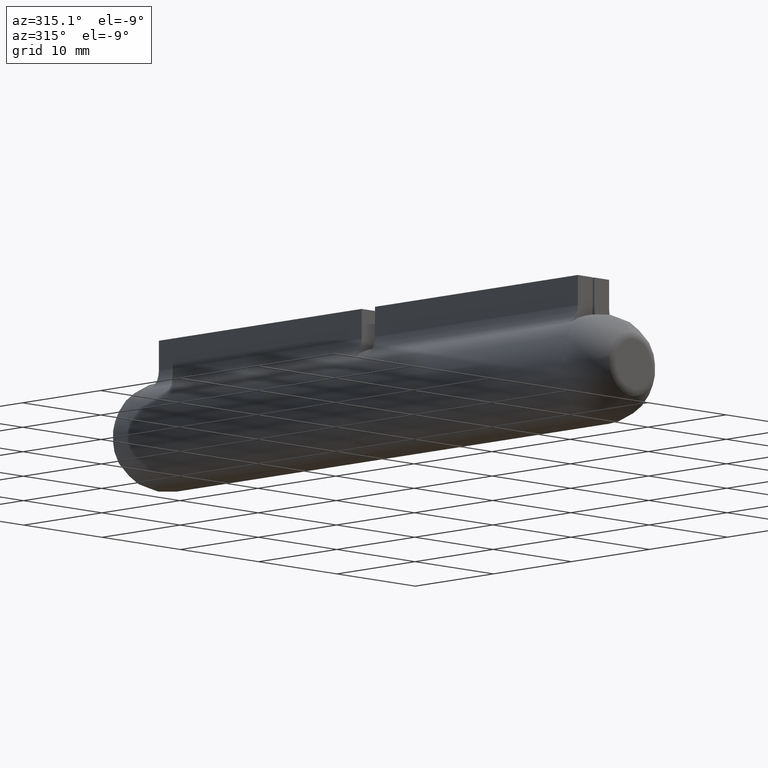
[diagram: clean part render]
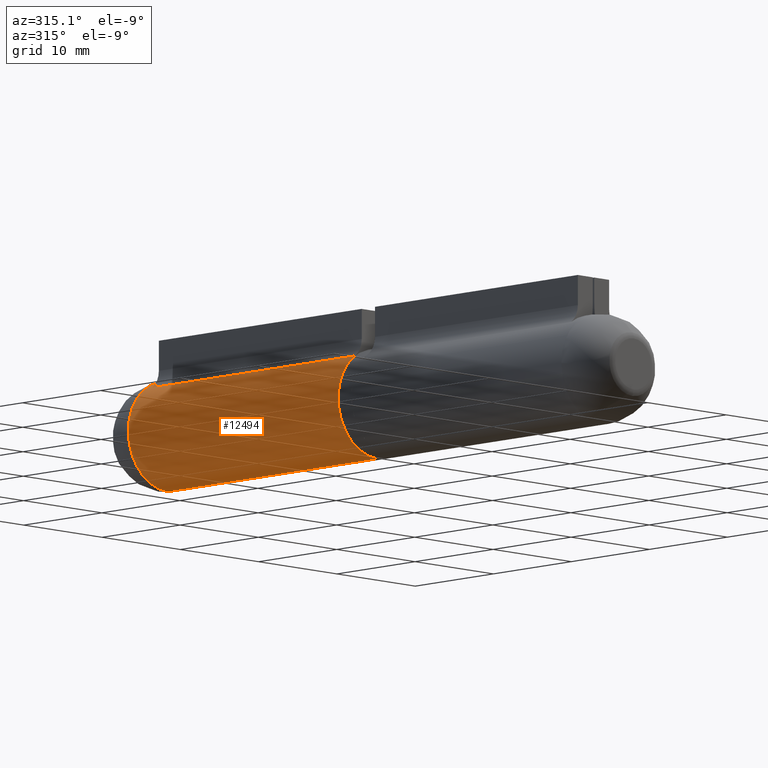
[diagram: same view with one face highlighted and labeled with its STEP entity id]
A machine part, auxiliary view. The second image highlights one B-rep face of the part: STEP entity #12494.
In plain terms, the highlighted cylindrical surface (partial cylindrical patch) has radius 5 mm, axis along (-0, -1, -0).
Its self-contained STEP definition (entity closure, byte-faithful):
#133 = LINE ( 'NONE', #3667, #7462 ) ;
#1141 = VECTOR ( 'NONE', #9276, 1000.000000000000000 ) ;
#1253 = ORIENTED_EDGE ( 'NONE', *, *, #5740, .F. ) ;
#1635 = DIRECTION ( 'NONE',  ( -0.000000000000000000, -1.000000000000000000, -0.000000000000000000 ) ) ;
#1864 = CARTESIAN_POINT ( 'NONE',  ( 0.000000000000000000, 12.99999999999999467, -2.945275551949391278E-15 ) ) ;
#2055 = CYLINDRICAL_SURFACE ( 'NONE', #8248, 5.000000000000000000 ) ;
#2677 = AXIS2_PLACEMENT_3D ( 'NONE', #7677, #7767, #8867 ) ;
#3156 = EDGE_CURVE ( 'NONE', #12729, #6614, #12299, .T. ) ;
#3314 = CARTESIAN_POINT ( 'NONE',  ( 0.000000000000000000, -13.00000000000000000, -5.000000000000000000 ) ) ;
#3559 = CARTESIAN_POINT ( 'NONE',  ( -0.1723120683631393646, 12.99999999999999467, 4.997029973003599856 ) ) ;
#3667 = CARTESIAN_POINT ( 'NONE',  ( -2.857142857142857650, 13.00000000000000000, 4.103259033241449139 ) ) ;
#4020 = LINE ( 'NONE', #5965, #1141 ) ;
#4097 = DIRECTION ( 'NONE',  ( 0.000000000000000000, 0.000000000000000000, 1.000000000000000000 ) ) ;
#4368 = ORIENTED_EDGE ( 'NONE', *, *, #10189, .F. ) ;
#4555 = EDGE_LOOP ( 'NONE', ( #4368, #7880, #12732, #7417, #1253, #9583, #8724 ) ) ;
#4638 = EDGE_CURVE ( 'NONE', #8507, #7060, #11941, .T. ) ;
#5094 = DIRECTION ( 'NONE',  ( -0.000000000000000000, 1.000000000000000000, 1.224646799147364794E-16 ) ) ;
#5740 = EDGE_CURVE ( 'NONE', #13819, #6614, #133, .T. ) ;
#5912 = DIRECTION ( 'NONE',  ( 0.000000000000000000, 0.000000000000000000, -1.000000000000000000 ) ) ;
#5965 = CARTESIAN_POINT ( 'NONE',  ( 0.000000000000000000, 13.00000000000000000, -5.000000000000000000 ) ) ;
#6614 = VERTEX_POINT ( 'NONE', #8082 ) ;
#6956 = FACE_OUTER_BOUND ( 'NONE', #4555, .T. ) ;
#7038 = EDGE_CURVE ( 'NONE', #8507, #12729, #4020, .T. ) ;
#7060 = VERTEX_POINT ( 'NONE', #10315 ) ;
#7062 = DIRECTION ( 'NONE',  ( -0.000000000000000000, -1.000000000000000000, -0.000000000000000000 ) ) ;
#7208 = LINE ( 'NONE', #9413, #12151 ) ;
#7221 = CIRCLE ( 'NONE', #7418, 4.999999999999996447 ) ;
#7352 = DIRECTION ( 'NONE',  ( 0.000000000000000000, 0.000000000000000000, 1.000000000000000000 ) ) ;
#7367 = VERTEX_POINT ( 'NONE', #13013 ) ;
#7417 = ORIENTED_EDGE ( 'NONE', *, *, #3156, .T. ) ;
#7418 = AXIS2_PLACEMENT_3D ( 'NONE', #8263, #12644, #7352 ) ;
#7462 = VECTOR ( 'NONE', #8074, 1000.000000000000000 ) ;
#7646 = CIRCLE ( 'NONE', #9061, 4.999999999999996447 ) ;
#7677 = CARTESIAN_POINT ( 'NONE',  ( 0.000000000000000000, -13.00000000000000000, 0.000000000000000000 ) ) ;
#7767 = DIRECTION ( 'NONE',  ( 0.000000000000000000, 1.000000000000000000, 0.000000000000000000 ) ) ;
#7787 = CARTESIAN_POINT ( 'NONE',  ( 0.000000000000000000, 13.89999999999999147, -4.999999999999999112 ) ) ;
#7880 = ORIENTED_EDGE ( 'NONE', *, *, #4638, .F. ) ;
#8074 = DIRECTION ( 'NONE',  ( -0.000000000000000000, -1.000000000000000000, -0.000000000000000000 ) ) ;
#8082 = CARTESIAN_POINT ( 'NONE',  ( -2.857142857142857650, -13.00000000000000000, 4.103259033241449139 ) ) ;
#8248 = AXIS2_PLACEMENT_3D ( 'NONE', #13584, #7062, #5912 ) ;
#8263 = CARTESIAN_POINT ( 'NONE',  ( 0.000000000000000000, 12.99999999999999467, -2.945275551949391278E-15 ) ) ;
#8507 = VERTEX_POINT ( 'NONE', #7787 ) ;
#8724 = ORIENTED_EDGE ( 'NONE', *, *, #11232, .T. ) ;
#8867 = DIRECTION ( 'NONE',  ( 0.000000000000000000, 0.000000000000000000, 1.000000000000000000 ) ) ;
#9061 = AXIS2_PLACEMENT_3D ( 'NONE', #1864, #5094, #4097 ) ;
#9071 = DIRECTION ( 'NONE',  ( 0.000000000000000000, 0.000000000000000000, 1.000000000000000000 ) ) ;
#9162 = EDGE_CURVE ( 'NONE', #13819, #12264, #7221, .T. ) ;
#9276 = DIRECTION ( 'NONE',  ( -0.000000000000000000, -1.000000000000000000, -0.000000000000000000 ) ) ;
#9413 = CARTESIAN_POINT ( 'NONE',  ( 6.123233995736765296E-16, 13.00000000000000000, 5.000000000000000000 ) ) ;
#9583 = ORIENTED_EDGE ( 'NONE', *, *, #9162, .T. ) ;
#10189 = EDGE_CURVE ( 'NONE', #7060, #7367, #7208, .T. ) ;
#10315 = CARTESIAN_POINT ( 'NONE',  ( 6.123233995736761352E-16, 13.89999999999999147, 4.999999999999993783 ) ) ;
#11036 = AXIS2_PLACEMENT_3D ( 'NONE', #11161, #13394, #9071 ) ;
#11161 = CARTESIAN_POINT ( 'NONE',  ( 0.000000000000000000, 13.89999999999999147, -2.835057340026128698E-15 ) ) ;
#11232 = EDGE_CURVE ( 'NONE', #12264, #7367, #7646, .T. ) ;
#11941 = CIRCLE ( 'NONE', #11036, 4.999999999999996447 ) ;
#12045 = CARTESIAN_POINT ( 'NONE',  ( -2.857142857142857650, 13.00000000000000000, 4.103259033241449139 ) ) ;
#12151 = VECTOR ( 'NONE', #1635, 1000.000000000000000 ) ;
#12264 = VERTEX_POINT ( 'NONE', #3559 ) ;
#12299 = CIRCLE ( 'NONE', #2677, 5.000000000000000000 ) ;
#12494 = ADVANCED_FACE ( 'NONE', ( #6956 ), #2055, .T. ) ;
#12644 = DIRECTION ( 'NONE',  ( -0.000000000000000000, 1.000000000000000000, 1.224646799147364794E-16 ) ) ;
#12729 = VERTEX_POINT ( 'NONE', #3314 ) ;
#12732 = ORIENTED_EDGE ( 'NONE', *, *, #7038, .T. ) ;
#13013 = CARTESIAN_POINT ( 'NONE',  ( 6.123233995736761352E-16, 12.99999999999999467, 4.999999999999993783 ) ) ;
#13394 = DIRECTION ( 'NONE',  ( -0.000000000000000000, 1.000000000000000000, 1.224646799147364794E-16 ) ) ;
#13584 = CARTESIAN_POINT ( 'NONE',  ( 0.000000000000000000, 13.00000000000000000, 0.000000000000000000 ) ) ;
#13819 = VERTEX_POINT ( 'NONE', #12045 ) ;